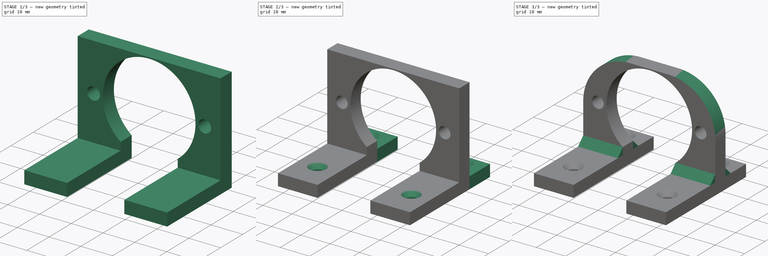
[diagram: build sequence overview — one tinted view per stage of 3, left to right]
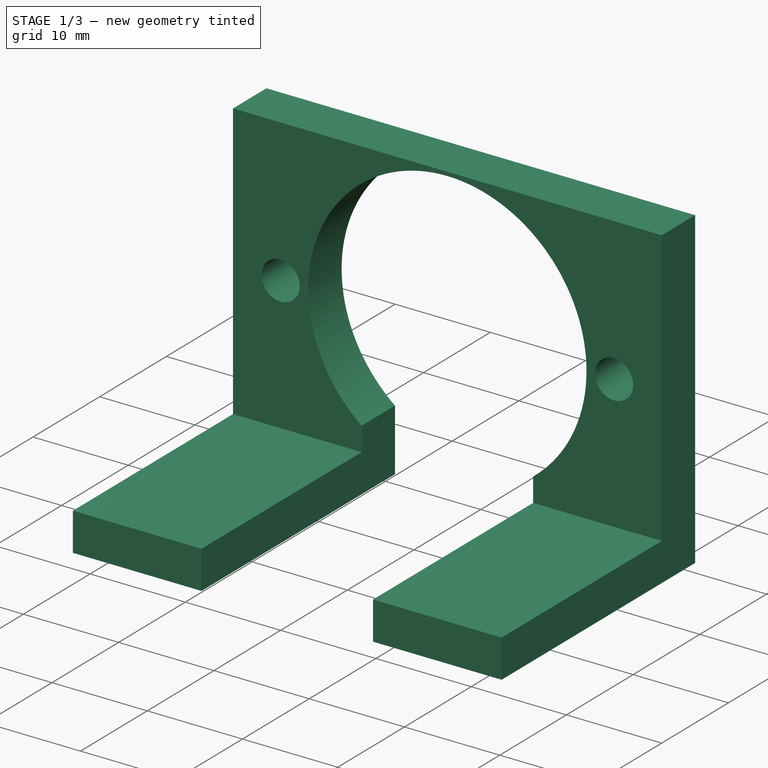
[diagram: stage 1 of 3 — iso view after this stage's code; geometry added in this stage tinted green]
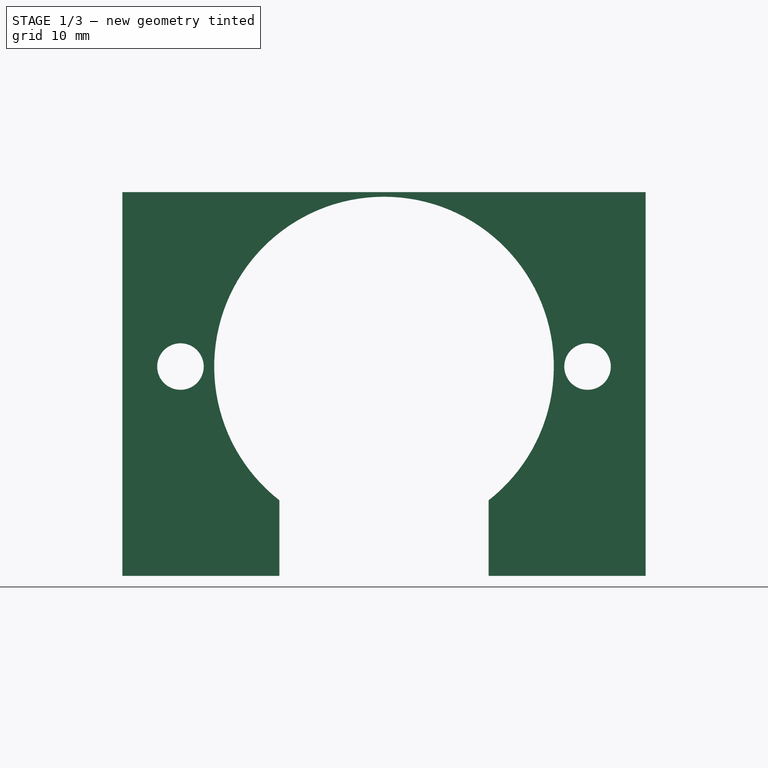
[diagram: stage 1 of 3 — front view after this stage's code; geometry added in this stage tinted green]
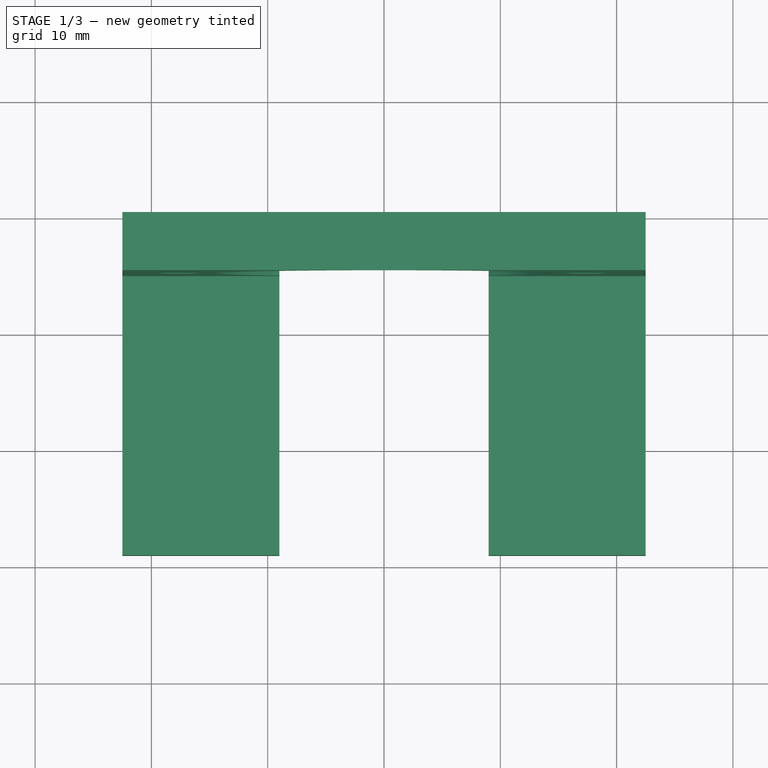
[diagram: stage 1 of 3 — top view after this stage's code; geometry added in this stage tinted green]
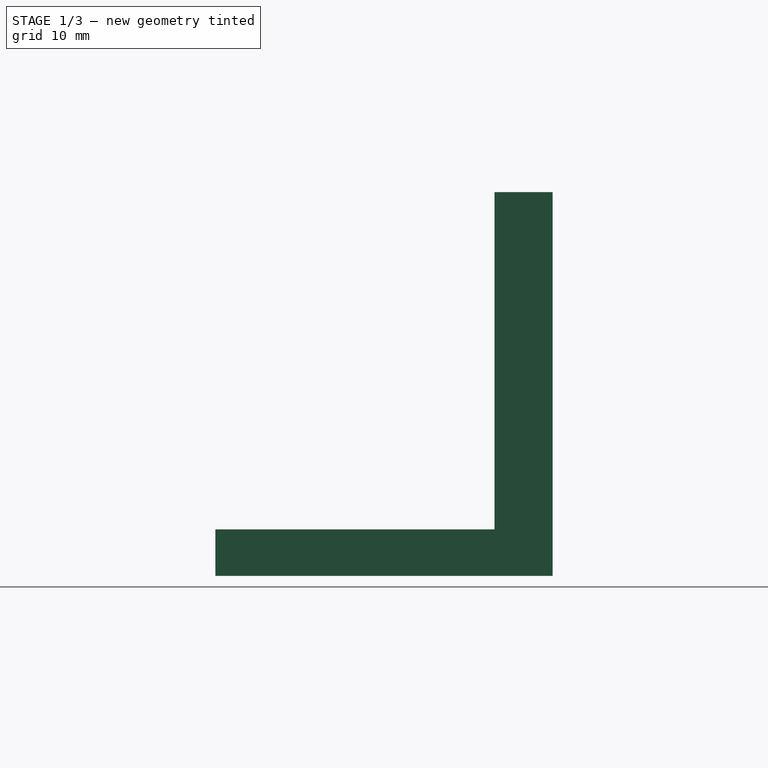
[diagram: stage 1 of 3 — right view after this stage's code; geometry added in this stage tinted green]
FCSTD DOCUMENT  (FreeCAD 0.17R13509 (Git))
Label: lc_monter_mount
License: All rights reserved
LicenseURL: http://en.wikipedia.org/wiki/All_rights_reserved
objects: Sketcher::SketchObject×4, PartDesign::Pad×3, PartDesign::Chamfer×2, PartDesign::Pocket×1, PartDesign::Fillet×1, PartDesign::Body×1
note: 16 computed .brp shape members not serialized (recipe doc carries the construction recipe); baked Part::Feature solids carry a one-line shape summary decoded from their .brp

FEATURE [Sketcher::SketchObject] Sketch001
  MapMode = 5
  Placement = pos=(0,0,0) rot=(1,0,0;1.5708rad)
  Support = -> [XZ_Plane]
  sketch-geometry (11):
    g0: LineSegment StartX=-22.5 StartY=33 StartZ=0 EndX=22.5 EndY=33 EndZ=0
    g1: LineSegment StartX=22.5 StartY=33 StartZ=0 EndX=22.5 EndY=0 EndZ=0
    g2: LineSegment StartX=-22.5 StartY=0 StartZ=0 EndX=-22.5 EndY=33 EndZ=0
    g3: LineSegment [constr] StartX=-22.5 StartY=18 StartZ=0 EndX=22.5 EndY=18 EndZ=0
    g4: ArcOfCircle CenterX=0 CenterY=18 CenterZ=0 NormalX=0 NormalY=0 NormalZ=1 AngleXU=0 Radius=14.6 StartAngle=5.3766 EndAngle=10.3314
    g5: Circle CenterX=-17.5 CenterY=18 CenterZ=0 NormalX=0 NormalY=0 NormalZ=1 AngleXU=0 Radius=2
    g6: Circle CenterX=17.5 CenterY=18 CenterZ=0 NormalX=0 NormalY=0 NormalZ=1 AngleXU=0 Radius=2
    g7: LineSegment StartX=-9 StartY=0 StartZ=0 EndX=-9 EndY=6.50391 EndZ=0
    g8: LineSegment StartX=9 StartY=6.50391 StartZ=0 EndX=9 EndY=0 EndZ=0
    g9: LineSegment StartX=-22.5 StartY=0 StartZ=0 EndX=-9 EndY=0 EndZ=0
    g10: LineSegment StartX=9 StartY=0 StartZ=0 EndX=22.5 EndY=0 EndZ=0
  constraints (34):
    c: Coincident(g0,g1)
    c: Coincident(g2,g0)
    c: Horizontal(g0)
    c: Vertical(g1)
    c: Vertical(g2)
    c: PointOnObject(g1,g-1)
    c: Symmetric(g2,g1,g-2)
    c: PointOnObject(g3,g2)
    c: PointOnObject(g3,g1)
    c: Horizontal(g3)
    c: PointOnObject(g4,g3)
    c: PointOnObject(g5,g3)
    c: PointOnObject(g6,g3)
    c: Symmetric(g5,g6,g-2)
    c: PointOnObject(g4,g-2)
    c: DistanceX(g5,g4) = 17.5
    c: Radius(g4) = 14.6
    c: DistanceY(g-1,g4) = 18
    c: Vertical(g7)
    c: Vertical(g8)
    c: Coincident(g9,g2)
    c: Coincident(g9,g7)
    c: Horizontal(g9)
    c: Coincident(g10,g8)
    c: Coincident(g10,g1)
    c: Horizontal(g10)
    c: Coincident(g4,g8)
    c: Coincident(g4,g7)
    c: Symmetric(g4,g4,g-2)
    c: DistanceX(g7,g8) = 18
    c: Radius(g6) = 2
    c: Equal(g6,g5)
    c: DistanceX(g0,g0) = 45
    c: DistanceY(g1,g1) = 33
FEATURE [PartDesign::Pad] Pad
  Length = 5
  Length2 = 100
  Placement = pos=(0,0,0) rot=(1,0,0;1.5708rad)
  Profile = -> Sketch001
  Type = 0
FEATURE [Sketcher::SketchObject] Sketch
  ExternalGeometry = -> [Pad]
  MapMode = 5
  Placement = pos=(0,-5,0) rot=(1,0,0;1.5708rad)
  Support = -> [Pad]
  sketch-geometry (8):
    g0: LineSegment StartX=-22.5 StartY=0 StartZ=0 EndX=-9 EndY=0 EndZ=0
    g1: LineSegment StartX=-9 StartY=0 StartZ=0 EndX=-9 EndY=4 EndZ=0
    g2: LineSegment StartX=-9 StartY=4 StartZ=0 EndX=-22.5 EndY=4 EndZ=0
    g3: LineSegment StartX=-22.5 StartY=4 StartZ=0 EndX=-22.5 EndY=0 EndZ=0
    g4: LineSegment StartX=22.5 StartY=0 StartZ=0 EndX=9 EndY=0 EndZ=0
    g5: LineSegment StartX=9 StartY=0 StartZ=0 EndX=9 EndY=4 EndZ=0
    g6: LineSegment StartX=9 StartY=4 StartZ=0 EndX=22.5 EndY=4 EndZ=0
    g7: LineSegment StartX=22.5 StartY=4 StartZ=0 EndX=22.5 EndY=0 EndZ=0
  constraints (22):
    c: Coincident(g0,g1)
    c: Coincident(g1,g2)
    c: Coincident(g2,g3)
    c: Coincident(g3,g0)
    c: Horizontal(g0)
    c: Horizontal(g2)
    c: Vertical(g1)
    c: Vertical(g3)
    c: Coincident(g0,g-3)
    c: PointOnObject(g1,g-6)
    c: Coincident(g4,g5)
    c: Coincident(g5,g6)
    c: Coincident(g6,g7)
    c: Coincident(g7,g4)
    c: Horizontal(g4)
    c: Horizontal(g6)
    c: Vertical(g5)
    c: Vertical(g7)
    c: Coincident(g4,g-4)
    c: PointOnObject(g5,g-5)
    c: DistanceY(g3,g3) = 4
    c: DistanceY(g7,g7) = 4
FEATURE [PartDesign::Pad] Pad001
  BaseFeature = -> Pad
  Length = 24
  Length2 = 100
  Placement = pos=(0,0,0) rot=(1,0,0;1.5708rad)
  Profile = -> Sketch
  Type = 0
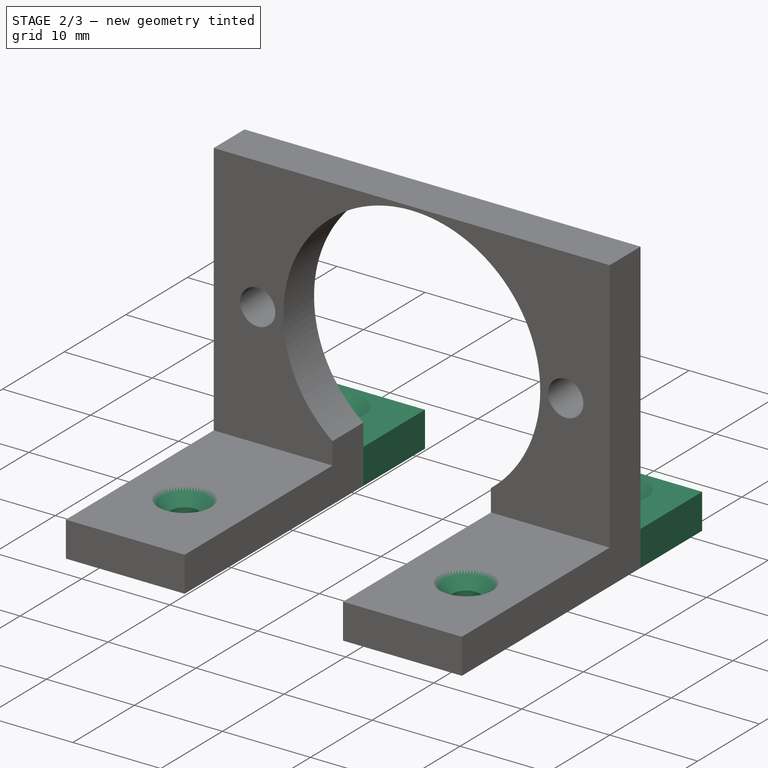
[diagram: stage 2 of 3 — iso view after this stage's code; geometry added in this stage tinted green]
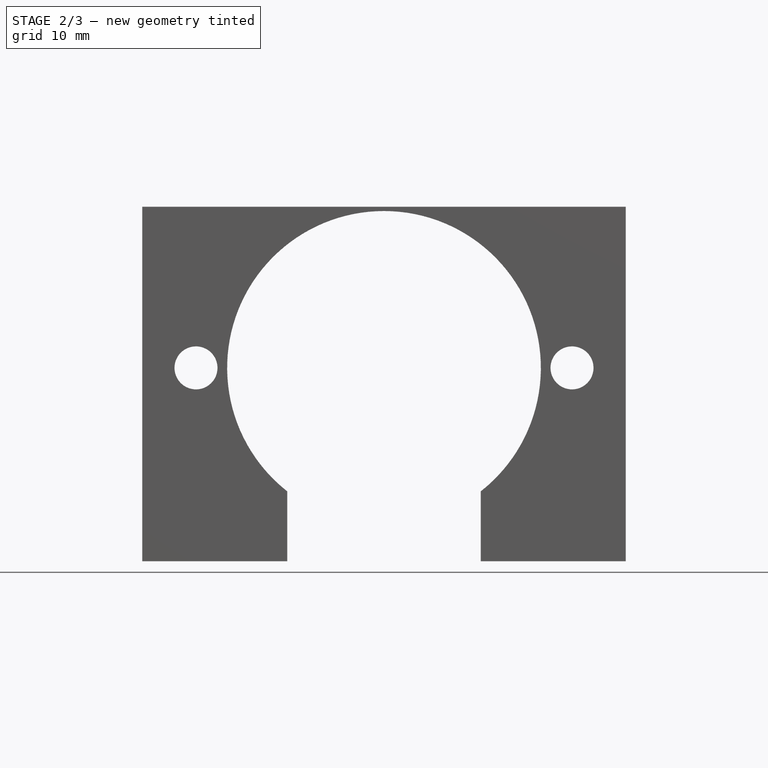
[diagram: stage 2 of 3 — front view after this stage's code; geometry added in this stage tinted green]
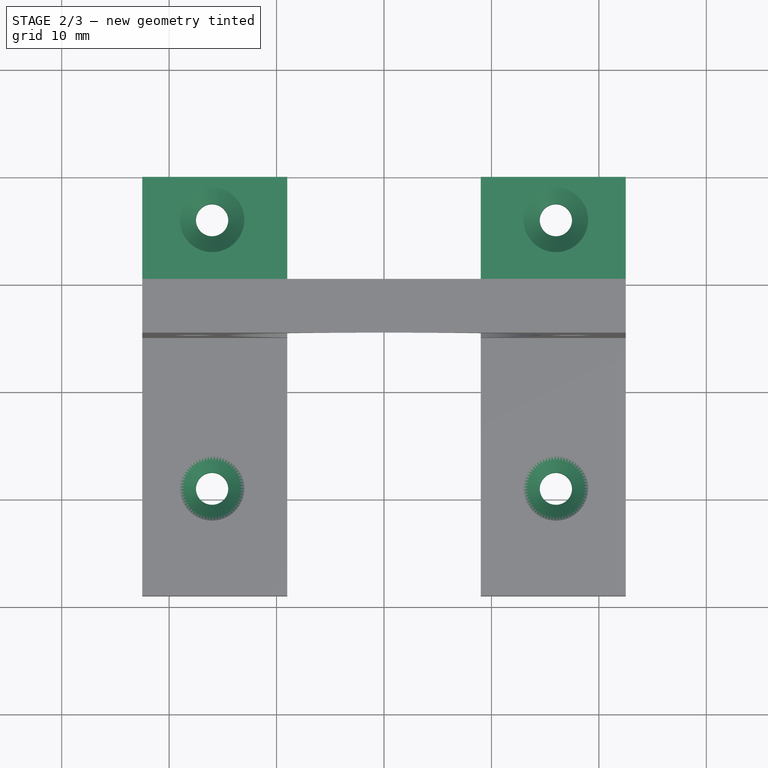
[diagram: stage 2 of 3 — top view after this stage's code; geometry added in this stage tinted green]
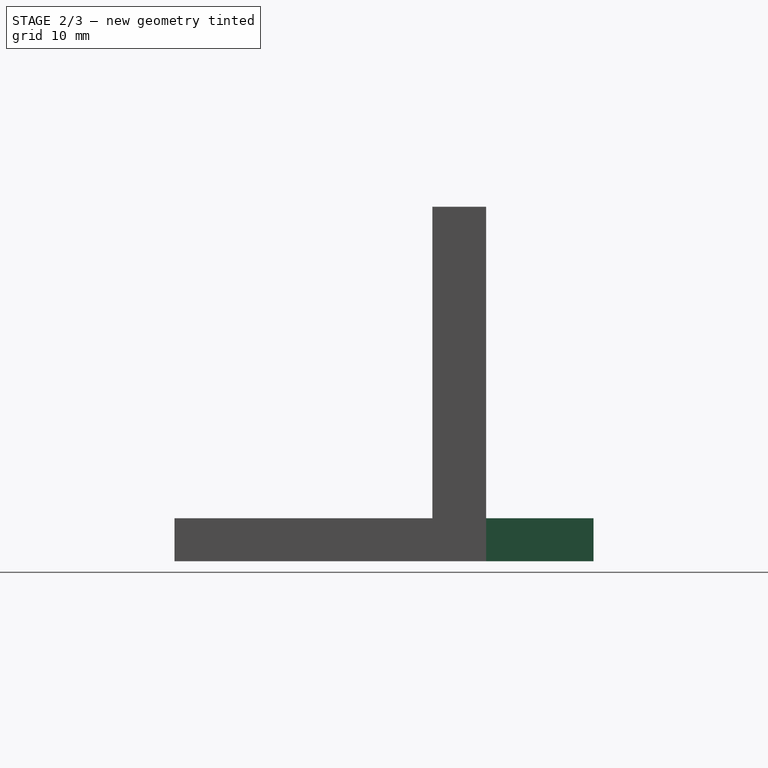
[diagram: stage 2 of 3 — right view after this stage's code; geometry added in this stage tinted green]
FEATURE [Sketcher::SketchObject] Sketch002
  ExternalGeometry = -> [Pad001]
  MapMode = 5
  Placement = pos=(0,0,0) rot=(-1,0,0;1.5708rad)
  Support = -> [Pad001]
  sketch-geometry (8):
    g0: LineSegment StartX=-22.5 StartY=0 StartZ=0 EndX=-9 EndY=0 EndZ=0
    g1: LineSegment StartX=-9 StartY=0 StartZ=0 EndX=-9 EndY=-4 EndZ=0
    g2: LineSegment StartX=-9 StartY=-4 StartZ=0 EndX=-22.5 EndY=-4 EndZ=0
    g3: LineSegment StartX=-22.5 StartY=-4 StartZ=0 EndX=-22.5 EndY=0 EndZ=0
    g4: LineSegment StartX=22.5 StartY=0 StartZ=0 EndX=9 EndY=0 EndZ=0
    g5: LineSegment StartX=9 StartY=0 StartZ=0 EndX=9 EndY=-4 EndZ=0
    g6: LineSegment StartX=9 StartY=-4 StartZ=0 EndX=22.5 EndY=-4 EndZ=0
    g7: LineSegment StartX=22.5 StartY=-4 StartZ=0 EndX=22.5 EndY=0 EndZ=0
  constraints (22):
    c: Coincident(g0,g1)
    c: Coincident(g1,g2)
    c: Coincident(g2,g3)
    c: Coincident(g3,g0)
    c: Horizontal(g0)
    c: Horizontal(g2)
    c: Vertical(g1)
    c: Vertical(g3)
    c: Coincident(g0,g-3)
    c: PointOnObject(g1,g-4)
    c: Coincident(g4,g5)
    c: Coincident(g5,g6)
    c: Coincident(g6,g7)
    c: Coincident(g7,g4)
    c: Horizontal(g4)
    c: Horizontal(g6)
    c: Vertical(g5)
    c: Vertical(g7)
    c: Coincident(g4,g-6)
    c: PointOnObject(g5,g-5)
    c: DistanceY(g3,g3) = 4
    c: DistanceY(g7,g7) = 4
FEATURE [PartDesign::Pad] Pad002
  BaseFeature = -> Pad001
  Length = 10
  Length2 = 100
  Placement = pos=(0,0,0) rot=(1,0,0;1.5708rad)
  Profile = -> Sketch002
  Type = 0
FEATURE [Sketcher::SketchObject] Sketch003
  ExternalGeometry = -> [Pad002]
  MapMode = 5
  Placement = pos=(0,0,4) rot=(0,0,1;3.14159rad)
  Support = -> [Pad002]
  sketch-geometry (8):
    g0: LineSegment [constr] StartX=-16 StartY=19 StartZ=0 EndX=16 EndY=19 EndZ=0
    g1: LineSegment [constr] StartX=16 StartY=19 StartZ=0 EndX=16 EndY=-6 EndZ=0
    g2: LineSegment [constr] StartX=16 StartY=-6 StartZ=0 EndX=-16 EndY=-6 EndZ=0
    g3: LineSegment [constr] StartX=-16 StartY=-6 StartZ=0 EndX=-16 EndY=19 EndZ=0
    g4: Circle CenterX=-16 CenterY=19 CenterZ=0 NormalX=0 NormalY=0 NormalZ=1 AngleXU=0 Radius=1.5
    g5: Circle CenterX=16 CenterY=19 CenterZ=0 NormalX=0 NormalY=0 NormalZ=1 AngleXU=0 Radius=1.5
    g6: Circle CenterX=-16 CenterY=-6 CenterZ=0 NormalX=0 NormalY=0 NormalZ=1 AngleXU=0 Radius=1.5
    g7: Circle CenterX=16 CenterY=-6 CenterZ=0 NormalX=0 NormalY=0 NormalZ=1 AngleXU=0 Radius=1.5
  constraints (20):
    c: Coincident(g0,g1)
    c: Coincident(g1,g2)
    c: Coincident(g2,g3)
    c: Coincident(g3,g0)
    c: Horizontal(g0)
    c: Horizontal(g2)
    c: Vertical(g1)
    c: Vertical(g3)
    c: DistanceY(g0,g-6) = 10
    c: DistanceX(g-6,g0) = 6.5
    c: DistanceX(g0,g-7) = 6.5
    c: DistanceY(g-5,g2) = 4
    c: Coincident(g4,g0)
    c: Coincident(g5,g0)
    c: Coincident(g6,g2)
    c: Coincident(g7,g1)
    c: Radius(g7) = 1.5
    c: Equal(g7,g6)
    c: Equal(g7,g4)
    c: Equal(g7,g5)
FEATURE [PartDesign::Pocket] Pocket
  BaseFeature = -> Pad002
  Length = 5
  Length2 = 100
  Placement = pos=(0,0,0) rot=(1,0,0;1.5708rad)
  Profile = -> Sketch003
  Type = 0
FEATURE [PartDesign::Chamfer] Chamfer
  Base = -> Pocket [Edge16,Edge61,Edge52,Edge70]
  BaseFeature = -> Pocket
  Placement = pos=(0,0,0) rot=(1,0,0;1.5708rad)
  Size = 1.5
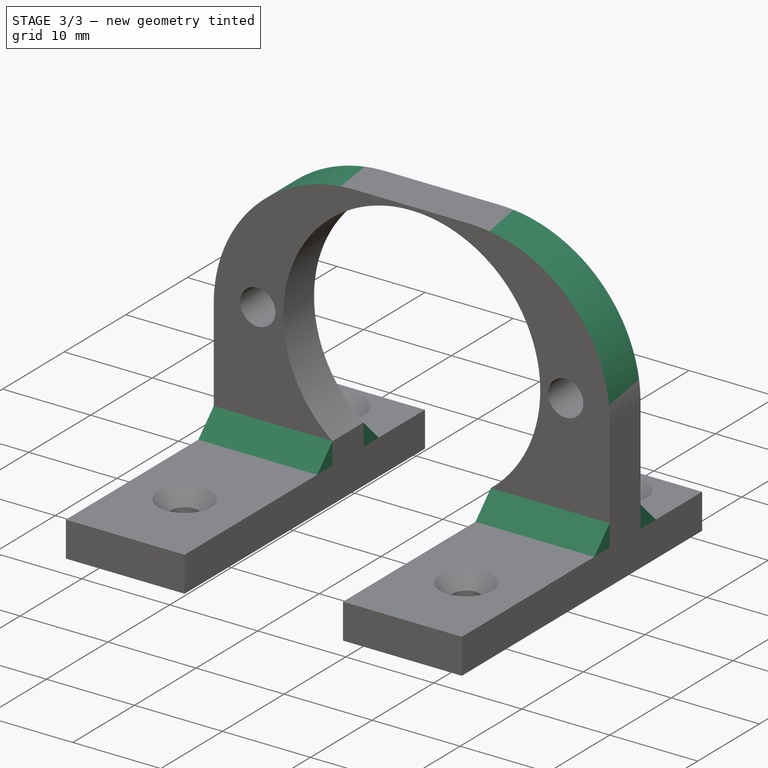
[diagram: stage 3 of 3 — iso view after this stage's code; geometry added in this stage tinted green]
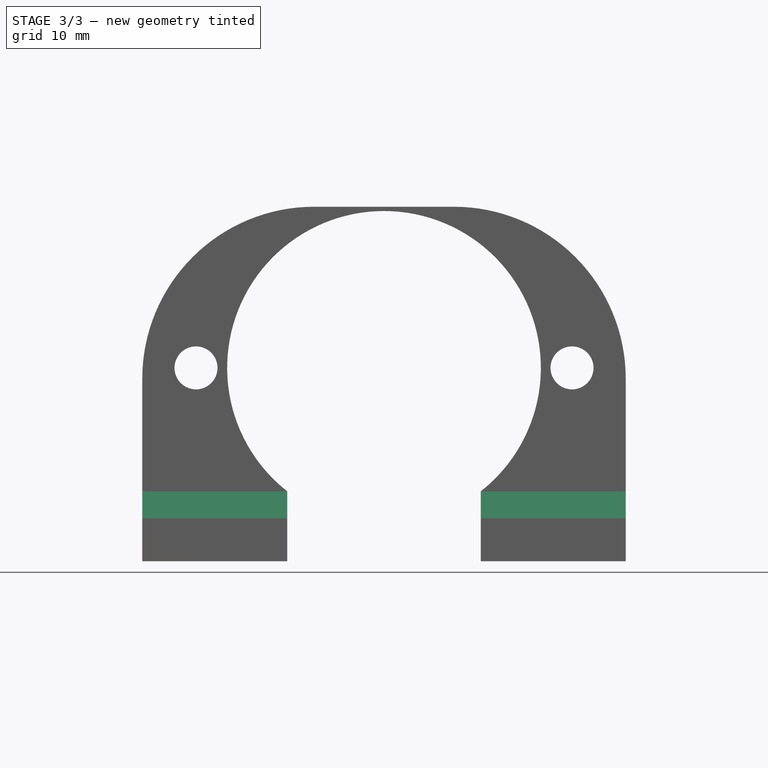
[diagram: stage 3 of 3 — front view after this stage's code; geometry added in this stage tinted green]
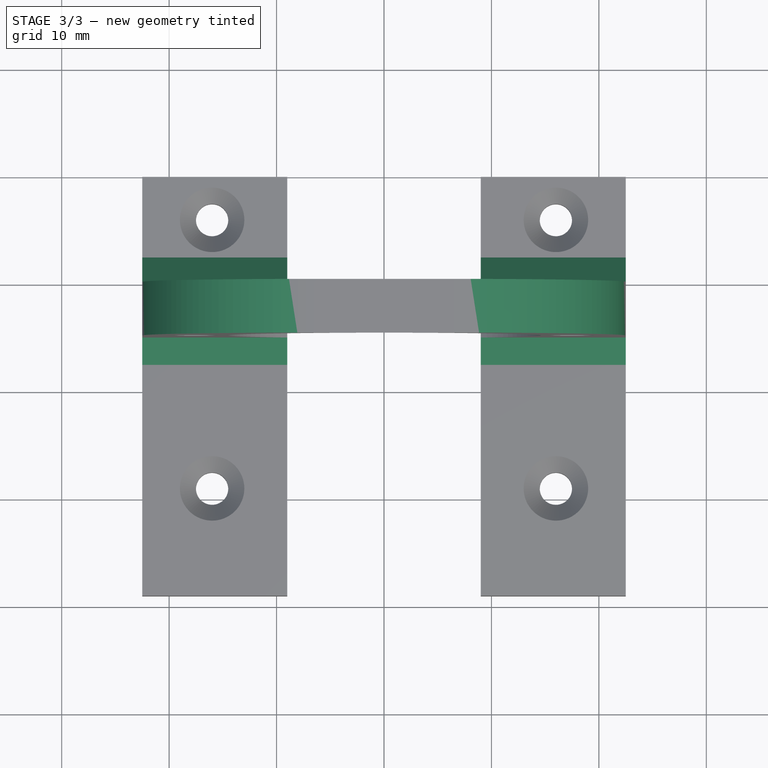
[diagram: stage 3 of 3 — top view after this stage's code; geometry added in this stage tinted green]
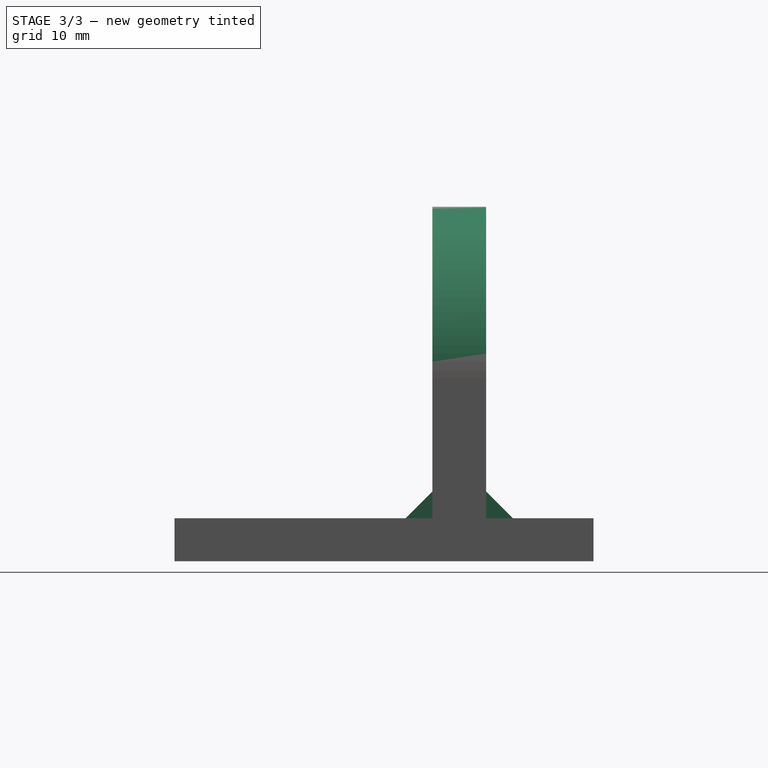
[diagram: stage 3 of 3 — right view after this stage's code; geometry added in this stage tinted green]
FEATURE [PartDesign::Chamfer] Chamfer001
  Base = -> Chamfer [Edge11,Edge24,Edge63,Edge62]
  BaseFeature = -> Chamfer
  Placement = pos=(0,0,0) rot=(1,0,0;1.5708rad)
  Size = 2.5
FEATURE [PartDesign::Fillet] Fillet
  Base = -> Chamfer001 [Edge38,Edge61]
  BaseFeature = -> Chamfer001
  Placement = pos=(0,0,0) rot=(1,0,0;1.5708rad)
  Radius = 16
FEATURE [PartDesign::Body] Body
  Group = -> [Sketch001,Pad,Sketch,Pad001,Sketch002,Pad002,Sketch003,Pocket,Chamfer,Chamfer001,Fillet]
  Origin = -> Origin
  Tip = -> Fillet
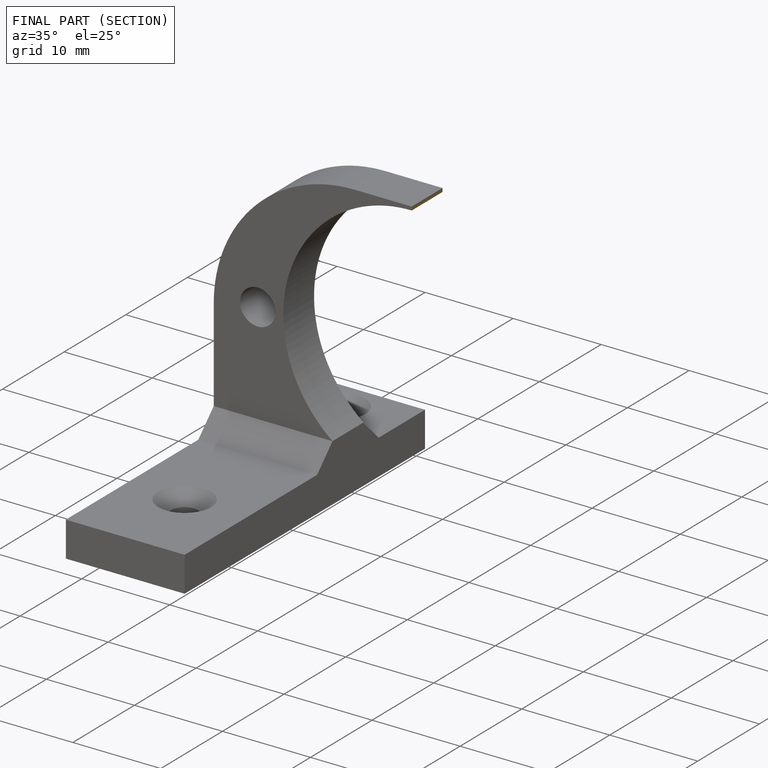
[diagram: finished part — half-section view (interior)]
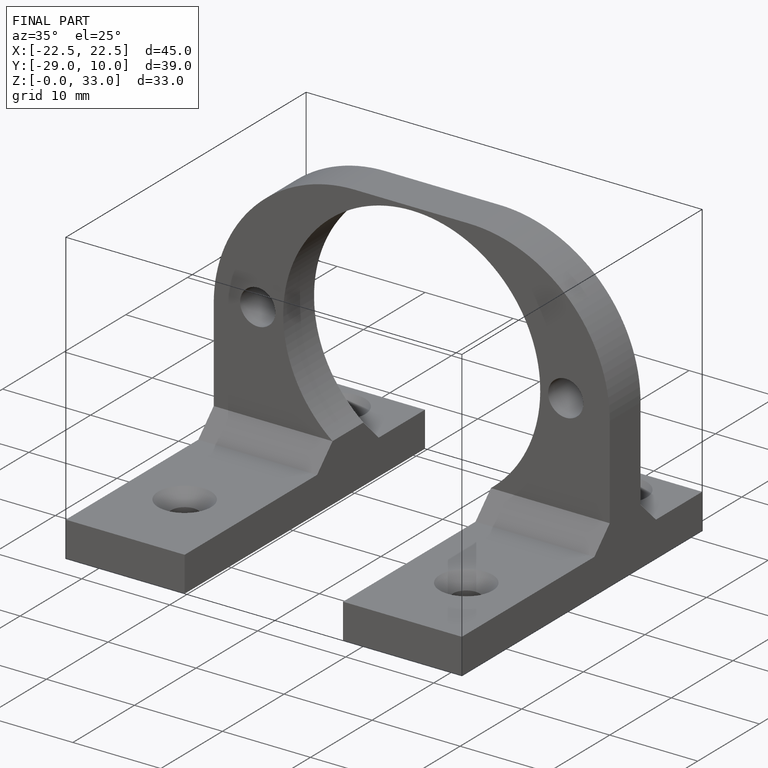
[diagram: finished part — iso view with bounding-box wireframe]
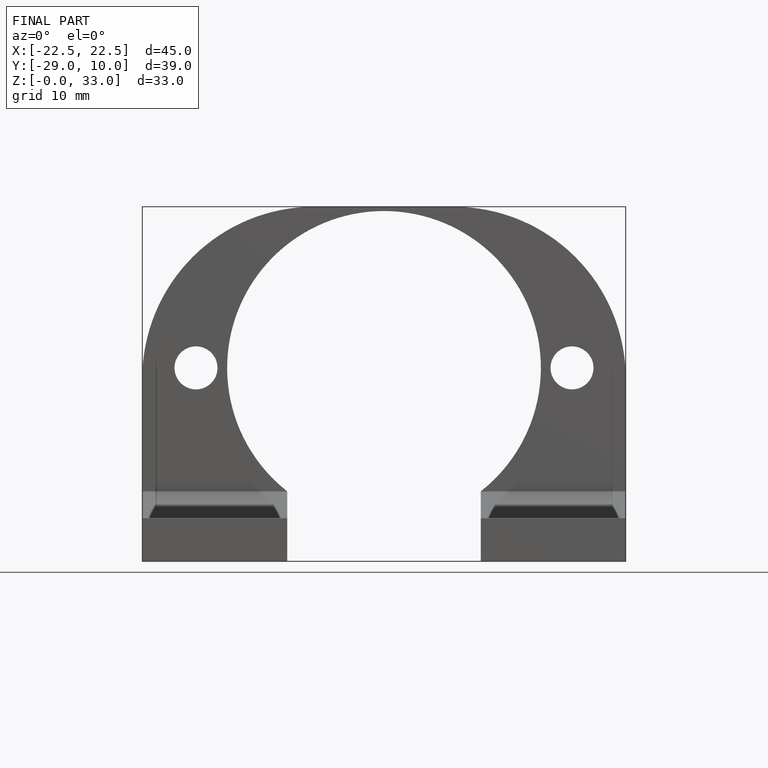
[diagram: finished part — front view with bounding-box wireframe]
